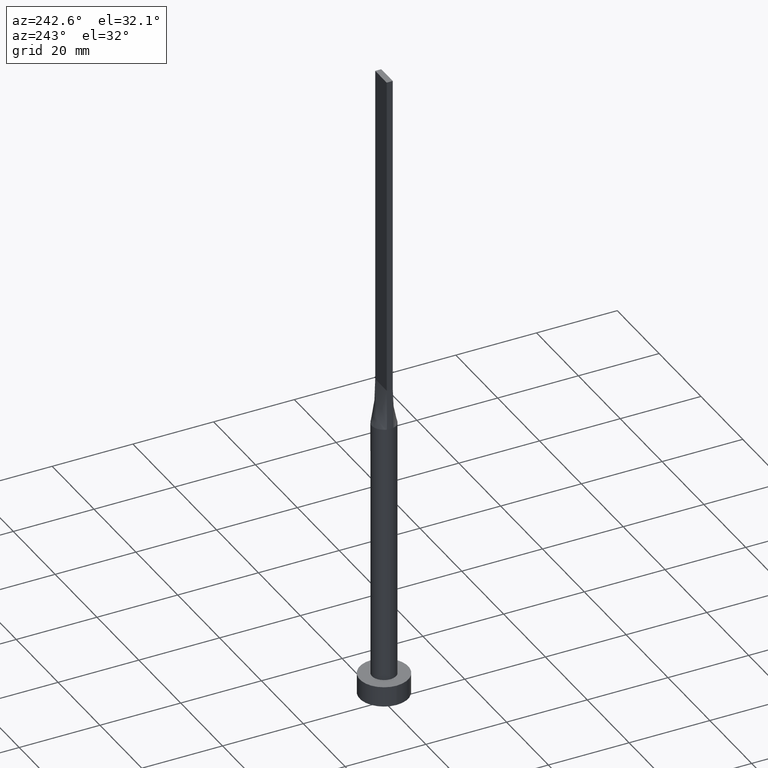
[diagram: clean part render]
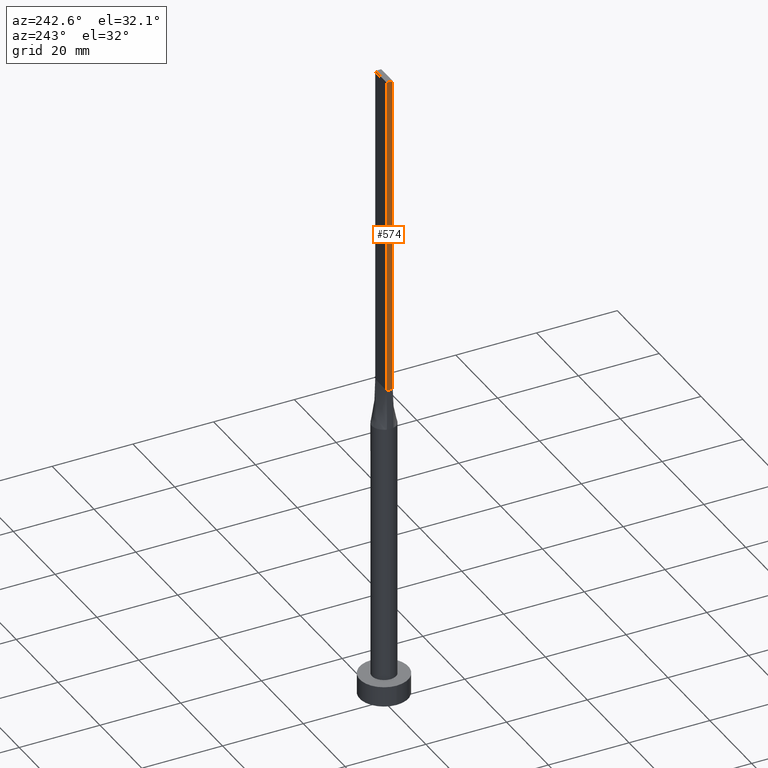
[diagram: same view with one face highlighted and labeled with its STEP entity id]
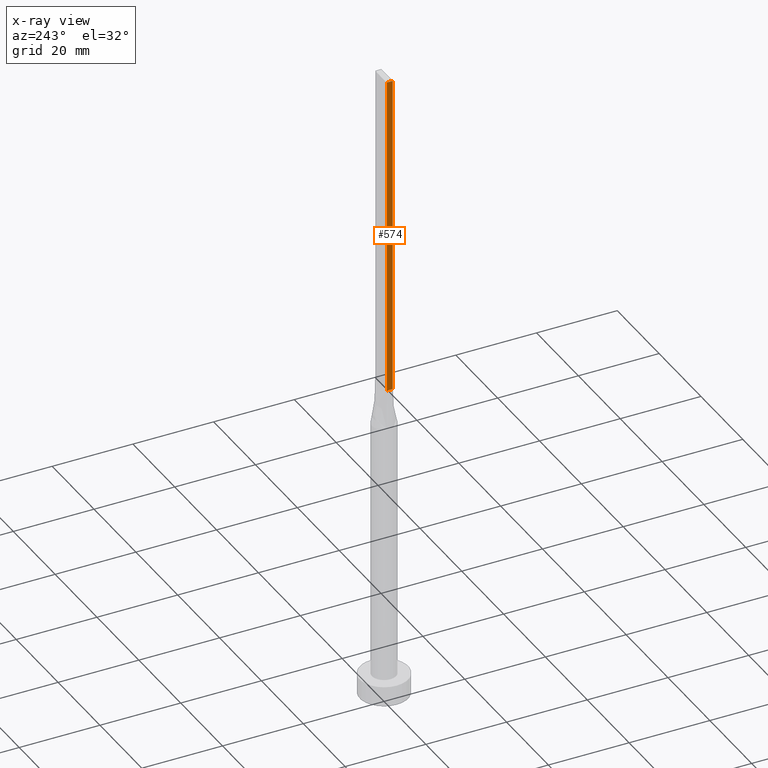
[diagram: x-ray of the same camera — body ghosted, the highlighted face saturated]
A machine part, auxiliary view. The second image highlights one B-rep face of the part: STEP entity #574.
The next image is the same camera in x-ray: the body ghosted, the highlighted face saturated — about 0% of this face is hidden behind the body in this view.
In plain terms, the highlighted planar face has unit normal (1, 0, -0).
Its self-contained STEP definition (entity closure, byte-faithful):
#20 = VERTEX_POINT ( 'NONE', #184 ) ;
#23 = VERTEX_POINT ( 'NONE', #412 ) ;
#41 = CARTESIAN_POINT ( 'NONE',  ( -2.750000000000000000, 0.7500000000000002220, 160.0000000000000000 ) ) ;
#43 = CARTESIAN_POINT ( 'NONE',  ( -2.750000000000000000, 0.7500000000000002220, 80.00000000000000000 ) ) ;
#107 = CARTESIAN_POINT ( 'NONE',  ( -2.750000000000000000, 0.7500000000000002220, 80.00000000000000000 ) ) ;
#110 = DIRECTION ( 'NONE',  ( -0.000000000000000000, 0.000000000000000000, -1.000000000000000000 ) ) ;
#111 = VERTEX_POINT ( 'NONE', #43 ) ;
#119 = VERTEX_POINT ( 'NONE', #41 ) ;
#124 = CARTESIAN_POINT ( 'NONE',  ( -2.750000000000000000, 0.7500000000000002220, 160.0000000000000000 ) ) ;
#132 = DIRECTION ( 'NONE',  ( -0.000000000000000000, -0.000000000000000000, -1.000000000000000000 ) ) ;
#138 = ORIENTED_EDGE ( 'NONE', *, *, #367, .F. ) ;
#158 = EDGE_LOOP ( 'NONE', ( #171, #138, #488, #430 ) ) ;
#171 = ORIENTED_EDGE ( 'NONE', *, *, #259, .T. ) ;
#184 = CARTESIAN_POINT ( 'NONE',  ( -2.750000000000000000, -0.7499999999999994449, 160.0000000000000000 ) ) ;
#189 = EDGE_CURVE ( 'NONE', #119, #20, #442, .T. ) ;
#204 = PLANE ( 'NONE',  #551 ) ;
#214 = FACE_OUTER_BOUND ( 'NONE', #158, .T. ) ;
#259 = EDGE_CURVE ( 'NONE', #111, #23, #340, .T. ) ;
#260 = VECTOR ( 'NONE', #492, 1000.000000000000000 ) ;
#289 = LINE ( 'NONE', #415, #399 ) ;
#300 = DIRECTION ( 'NONE',  ( 0.000000000000000000, -1.000000000000000000, 0.000000000000000000 ) ) ;
#340 = LINE ( 'NONE', #107, #530 ) ;
#357 = CARTESIAN_POINT ( 'NONE',  ( -2.750000000000000000, 0.7500000000000002220, 160.0000000000000000 ) ) ;
#367 = EDGE_CURVE ( 'NONE', #20, #23, #289, .T. ) ;
#376 = EDGE_CURVE ( 'NONE', #119, #111, #546, .T. ) ;
#385 = DIRECTION ( 'NONE',  ( 1.000000000000000000, 0.000000000000000000, -0.000000000000000000 ) ) ;
#391 = CARTESIAN_POINT ( 'NONE',  ( -2.750000000000000000, 0.7500000000000002220, 160.0000000000000000 ) ) ;
#399 = VECTOR ( 'NONE', #454, 1000.000000000000000 ) ;
#406 = VECTOR ( 'NONE', #132, 1000.000000000000000 ) ;
#412 = CARTESIAN_POINT ( 'NONE',  ( -2.750000000000000000, -0.7499999999999994449, 80.00000000000000000 ) ) ;
#415 = CARTESIAN_POINT ( 'NONE',  ( -2.750000000000000000, -0.7499999999999994449, 160.0000000000000000 ) ) ;
#430 = ORIENTED_EDGE ( 'NONE', *, *, #376, .T. ) ;
#442 = LINE ( 'NONE', #357, #260 ) ;
#454 = DIRECTION ( 'NONE',  ( -0.000000000000000000, -0.000000000000000000, -1.000000000000000000 ) ) ;
#488 = ORIENTED_EDGE ( 'NONE', *, *, #189, .F. ) ;
#492 = DIRECTION ( 'NONE',  ( 0.000000000000000000, -1.000000000000000000, 0.000000000000000000 ) ) ;
#530 = VECTOR ( 'NONE', #300, 1000.000000000000000 ) ;
#546 = LINE ( 'NONE', #124, #406 ) ;
#551 = AXIS2_PLACEMENT_3D ( 'NONE', #391, #385, #110 ) ;
#574 = ADVANCED_FACE ( 'NONE', ( #214 ), #204, .F. ) ;